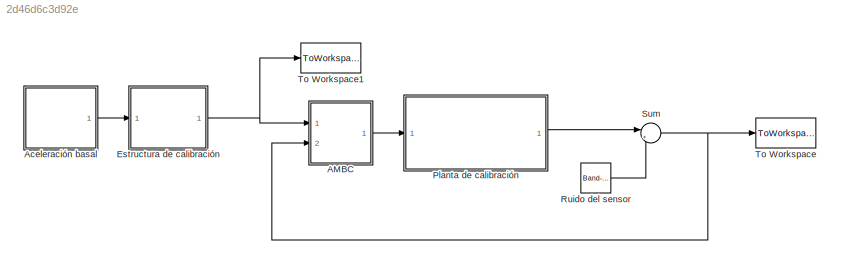
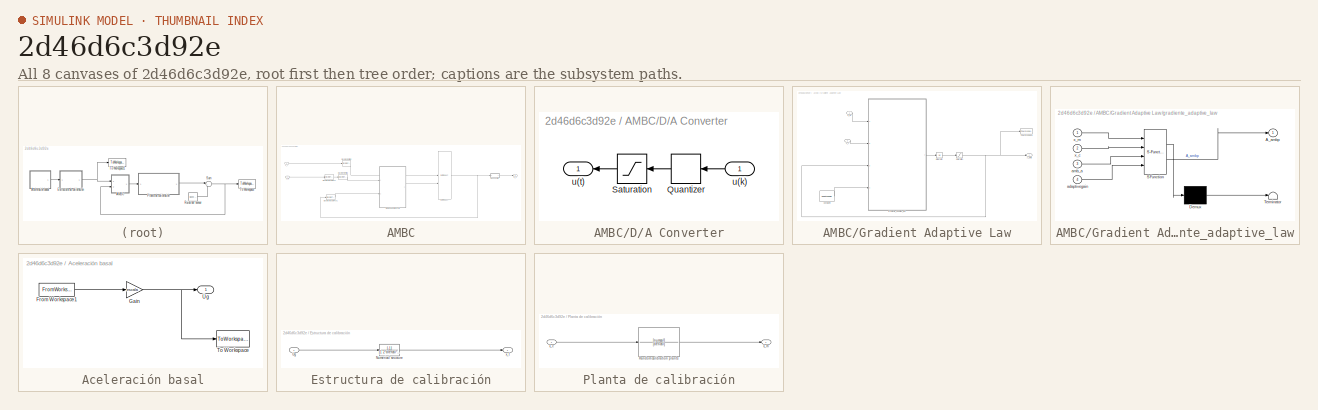
[diagram: thumbnail index - all 8 canvases of the model, root first then tree order]
MODEL slx_2d46d6c3d92e
KIND model
CONFIG AbsTol = auto
CONFIG EnableMultiTasking = off
CONFIG FixedStep = dtsim
CONFIG MaxStep = auto
CONFIG MinStep = auto
CONFIG RelTol = 1e-3
CONFIG SampleTimeConstraint = Unconstrained
CONFIG SolverName = ode4
CONFIG StartTime = 0.0
CONFIG StopTime = tcal
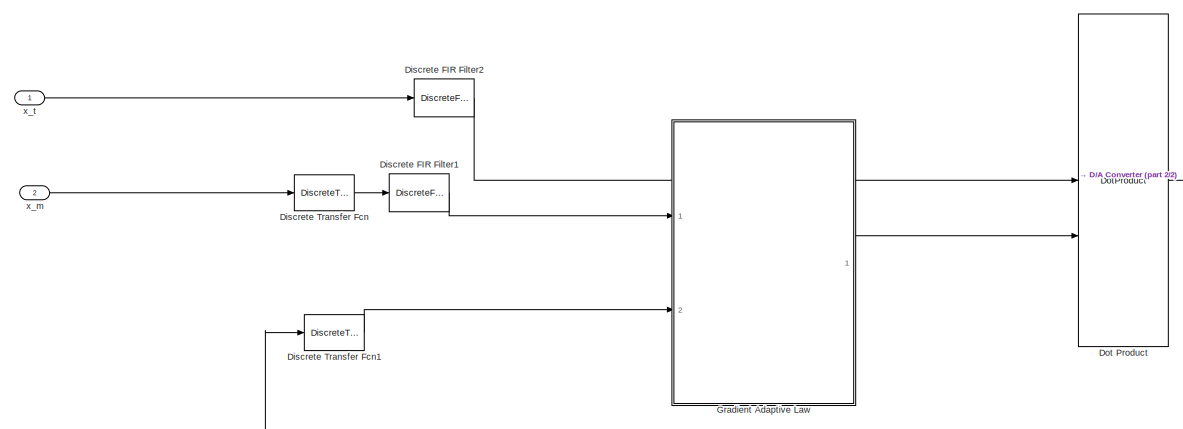
[diagram: AMBC - part 1/2, center side, full height]
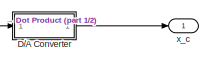
[diagram: AMBC - part 2/2, middle right region]
BLOCK [SubSystem] AMBC
  Ports = [2, 1]
  RequestExecContextInheritance = off
BLOCK [SubSystem] AMBC/D//A Converter
  NameLocation = top
  Ports = [1, 1]
  RequestExecContextInheritance = off
BLOCK [Quantizer] AMBC/D//A Converter/Quantizer
  NameLocation = top
  QuantizationInterval = quantize_int
BLOCK [Saturate] AMBC/D//A Converter/Saturation
  LowerLimit = sat_limit_lower
  NameLocation = top
  UpperLimit = sat_limit_upper
BLOCK [Inport] AMBC/D//A Converter/u(k)
BLOCK [Outport] AMBC/D//A Converter/u(t)
  VectorParamsAs1DForOutWhenUnconnected = off
BLOCK [DiscreteFir] AMBC/Discrete FIR Filter1
  Coefficients = Derivadas
  InputPortMap = u0
  OutputPortMap = o0
  Ports = [1, 1]
BLOCK [DiscreteFir] AMBC/Discrete FIR Filter2
  Coefficients = Derivadas
  InputPortMap = u0
  OutputPortMap = o0
  Ports = [1, 1]
BLOCK [DiscreteTransferFcn] AMBC/Discrete Transfer Fcn
  Denominator = [denfilter]
  InputPortMap = u0
  Numerator = [numfilter]
  Ports = [1, 1]
BLOCK [DiscreteTransferFcn] AMBC/Discrete Transfer Fcn1
  Denominator = [denfilter]
  InputPortMap = u0
  Numerator = [numfilter]
  Ports = [1, 1]
BLOCK [DotProduct] AMBC/Dot Product
  OutDataTypeStr = Inherit: Inherit via internal rule
BLOCK [SubSystem] AMBC/Gradient Adaptive Law
  Ports = [2, 1]
  RequestExecContextInheritance = off
BLOCK [Outport] AMBC/Gradient Adaptive Law/A_amb
  VectorParamsAs1DForOutWhenUnconnected = off
BLOCK [Constant] AMBC/Gradient Adaptive Law/Constant4
  Value = adaptivegain
BLOCK [Integrator] AMBC/Gradient Adaptive Law/Integrator
  InitialCondition = A_amb_i'
  Ports = [1, 1]
BLOCK [Saturate] AMBC/Gradient Adaptive Law/Saturation
  LowerLimit = min_amb
  UpperLimit = [max_amb]
BLOCK [ToWorkspace] AMBC/Gradient Adaptive Law/To Workspace
  FixptAsFi = on
  MaxDataPoints = inf
  Ports = [1]
  SampleTime = -1
  SaveFormat = Timeseries
  VariableName = amb
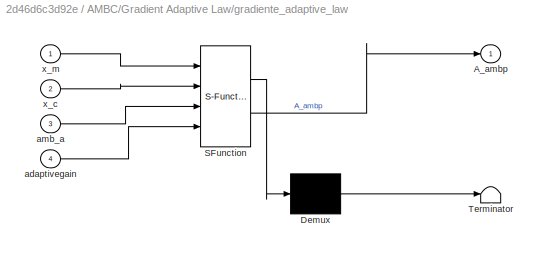
BLOCK [SubSystem] AMBC/Gradient Adaptive Law/gradiente_adaptive_law
  ErrorFcn = Stateflow.Translate.translate
  PermitHierarchicalResolution = ExplicitOnly
  Ports = [4, 1]
  RequestExecContextInheritance = off
  SFBlockType = MATLAB Function
  TreatAsAtomicUnit = on
BLOCK [Demux] AMBC/Gradient Adaptive Law/gradiente_adaptive_law/ Demux 
  Outputs = 1
  Ports = [1, 1]
BLOCK [S-Function] AMBC/Gradient Adaptive Law/gradiente_adaptive_law/ SFunction 
  EnableBusSupport = on
  FunctionName = sf_sfun
  PortCounts = [4 2]
  Ports = [4, 2]
  SFcnIsStateOwnerBlock = off
  SFunctionDeploymentMode = off
  Tag = Stateflow S-Function 2
BLOCK [Terminator] AMBC/Gradient Adaptive Law/gradiente_adaptive_law/ Terminator 
BLOCK [Outport] AMBC/Gradient Adaptive Law/gradiente_adaptive_law/A_ambp
  VectorParamsAs1DForOutWhenUnconnected = off
BLOCK [Inport] AMBC/Gradient Adaptive Law/gradiente_adaptive_law/adaptivegain
  Port = 4
BLOCK [Inport] AMBC/Gradient Adaptive Law/gradiente_adaptive_law/amb_a
  Port = 3
BLOCK [Inport] AMBC/Gradient Adaptive Law/gradiente_adaptive_law/x_c
  Port = 2
BLOCK [Inport] AMBC/Gradient Adaptive Law/gradiente_adaptive_law/x_m
BLOCK [Inport] AMBC/Gradient Adaptive Law/x_c
  Port = 2
BLOCK [Inport] AMBC/Gradient Adaptive Law/x_m
BLOCK [Outport] AMBC/x_c
  VectorParamsAs1DForOutWhenUnconnected = off
BLOCK [Inport] AMBC/x_m
  Port = 2
BLOCK [Inport] AMBC/x_t
BLOCK [SubSystem] Aceleración basal
  Ports = [0, 1]
  RequestExecContextInheritance = off
BLOCK [FromWorkspace] Aceleración basal/From Workspace1
  OutputAfterFinalValue = Setting to zero
  VariableName = Ugcal
BLOCK [Gain] Aceleración basal/Gain
  Gain = escala
BLOCK [ToWorkspace] Aceleración basal/To Workspace
  FixptAsFi = on
  MaxDataPoints = inf
  Ports = [1]
  SampleTime = -1
  SaveFormat = Timeseries
  VariableName = Ugs
BLOCK [Outport] Aceleración basal/Üg
  VectorParamsAs1DForOutWhenUnconnected = off
BLOCK [SubSystem] Estructura de calibración
  Ports = [1, 1]
  RequestExecContextInheritance = off
BLOCK [TransferFcn] Estructura de calibración/Numerical structure
  Denominator = [1 2*drefcal*wnrefcal wnrefcal^2]
  Numerator = [-1]
BLOCK [Outport] Estructura de calibración/x_t
  VectorParamsAs1DForOutWhenUnconnected = off
BLOCK [Inport] Estructura de calibración/Üg
BLOCK [SubSystem] Planta de calibración
  Ports = [1, 1]
  RequestExecContextInheritance = off
BLOCK [TransferFcn] Planta de calibración/Random calibration plants
  Denominator = [dencal]
  Numerator = [numcal]
BLOCK [Inport] Planta de calibración/x_c
BLOCK [Outport] Planta de calibración/x_m
  VectorParamsAs1DForOutWhenUnconnected = off
BLOCK [Reference] Ruido del sensor  REF=simulink/Sources/Band-Limited
White Noise
  Ports = [0, 1]
  SourceBlock = simulink/Sources/Band-Limited\nWhite Noise
  SourceProductBaseCode = SL
  SourceType = Band-Limited White Noise.
BLOCK [Sum] Sum
  Inputs = |++
  Ports = [2, 1]
BLOCK [ToWorkspace] To Workspace
  FixptAsFi = on
  MaxDataPoints = inf
  Ports = [1]
  SampleTime = -1
  SaveFormat = Timeseries
  VariableName = x_m
BLOCK [ToWorkspace] To Workspace1
  FixptAsFi = on
  MaxDataPoints = inf
  Ports = [1]
  SampleTime = -1
  SaveFormat = Timeseries
  VariableName = x_t
LINE AMBC/D//A Converter/Quantizer:1 -> AMBC/D//A Converter/Saturation:1
LINE AMBC/D//A Converter/Saturation:1 -> AMBC/D//A Converter/u(t):1
LINE AMBC/D//A Converter/u(k):1 -> AMBC/D//A Converter/Quantizer:1
LINE AMBC/D//A Converter:1 -> AMBC/x_c:1
LINE AMBC/Discrete FIR Filter1:1 -> AMBC/Gradient Adaptive Law:1
LINE AMBC/Discrete FIR Filter2:1 -> AMBC/Dot Product:1
LINE AMBC/Discrete Transfer Fcn1:1 -> AMBC/Gradient Adaptive Law:2
LINE AMBC/Discrete Transfer Fcn:1 -> AMBC/Discrete FIR Filter1:1
NET AMBC/Dot Product:1 -> AMBC/D//A Converter:1, AMBC/Discrete Transfer Fcn1:1
LINE AMBC/Gradient Adaptive Law/Constant4:1 -> AMBC/Gradient Adaptive Law/gradiente_adaptive_law:4
LINE AMBC/Gradient Adaptive Law/Integrator:1 -> AMBC/Gradient Adaptive Law/Saturation:1
NET AMBC/Gradient Adaptive Law/Saturation:1 -> AMBC/Gradient Adaptive Law/A_amb:1, AMBC/Gradient Adaptive Law/To Workspace:1, AMBC/Gradient Adaptive Law/gradiente_adaptive_law:3
LINE AMBC/Gradient Adaptive Law/gradiente_adaptive_law:1 -> AMBC/Gradient Adaptive Law/Integrator:1
LINE AMBC/Gradient Adaptive Law/x_c:1 -> AMBC/Gradient Adaptive Law/gradiente_adaptive_law:2
LINE AMBC/Gradient Adaptive Law/x_m:1 -> AMBC/Gradient Adaptive Law/gradiente_adaptive_law:1
LINE AMBC/Gradient Adaptive Law:1 -> AMBC/Dot Product:2
LINE AMBC/x_m:1 -> AMBC/Discrete Transfer Fcn:1
LINE AMBC/x_t:1 -> AMBC/Discrete FIR Filter2:1
LINE AMBC:1 -> Planta de calibración:1
LINE Aceleración basal/From Workspace1:1 -> Aceleración basal/Gain:1
NET Aceleración basal/Gain:1 -> Aceleración basal/To Workspace:1, Aceleración basal/Üg:1
LINE Aceleración basal:1 -> Estructura de calibración:1
LINE Estructura de calibración/Numerical structure:1 -> Estructura de calibración/x_t:1
LINE Estructura de calibración/Üg:1 -> Estructura de calibración/Numerical structure:1
NET Estructura de calibración:1 -> AMBC:1, To Workspace1:1
LINE Planta de calibración/Random calibration plants:1 -> Planta de calibración/x_m:1
LINE Planta de calibración/x_c:1 -> Planta de calibración/Random calibration plants:1
LINE Planta de calibración:1 -> Sum:1
LINE Ruido del sensor:1 -> Sum:2
NET Sum:1 -> AMBC:2, To Workspace:1
note: NET lines group one-source signal fan-out (src -> all destinations, sorted); 1:1 wires keep LINE
CHART AMBC/Gradient Adaptive Law/gradiente_adaptive_law states=1 transitions=1
  STATE_LABEL 'eML_blk_kernel()'
  STATE_LABEL "SCRIPT:\nfunction A_ambp   = fcn(x_m,x_c,amb_a,adaptivegain)\nerror=(x_c-amb_a'*x_m)/(1+(x_m'*x_m));\nA_ambp=adaptivegain*error*x_m;"
CHART  states=0 transitions=0
